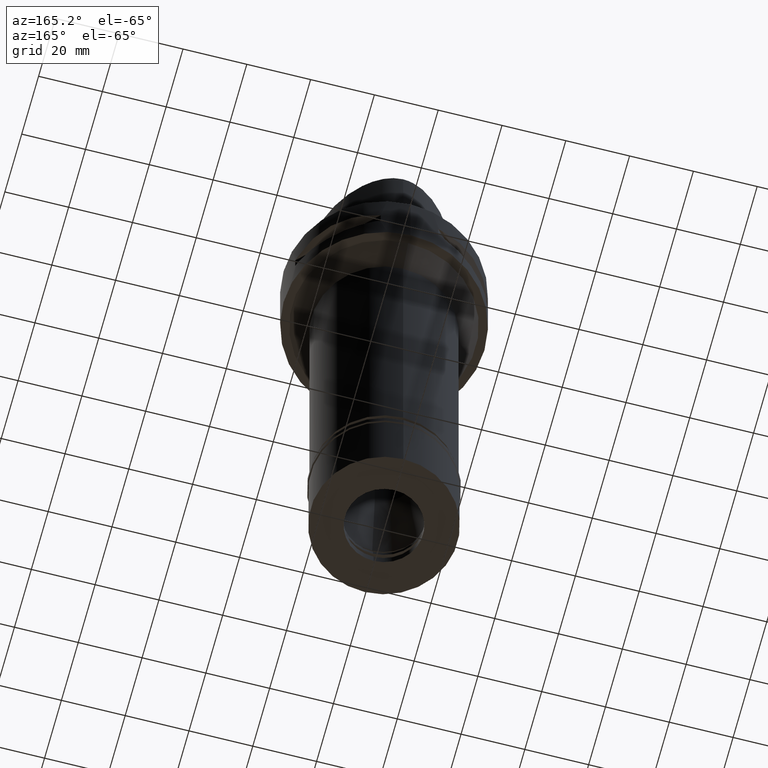
[diagram: clean part render]
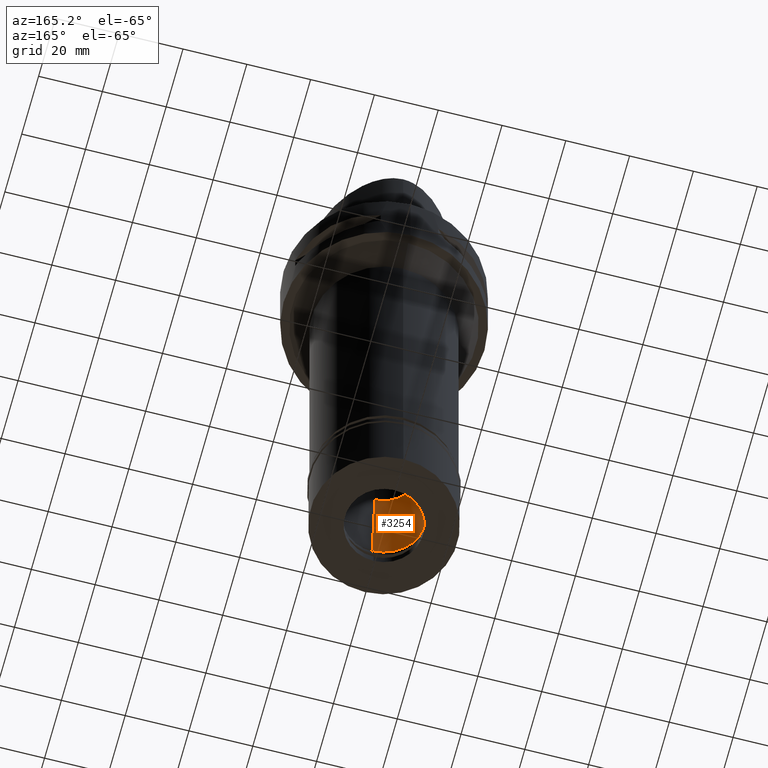
[diagram: same view with one face highlighted and labeled with its STEP entity id]
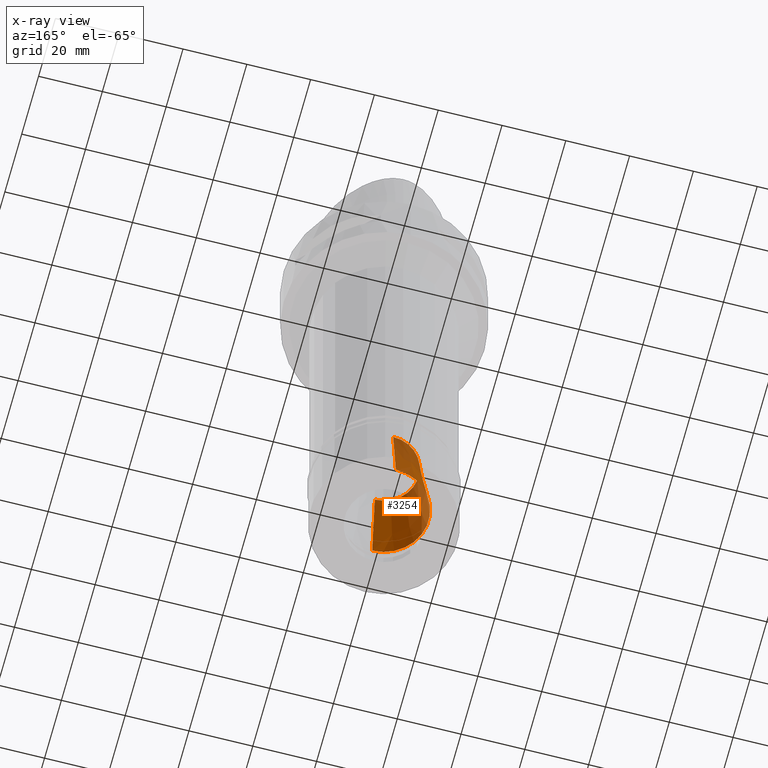
[diagram: x-ray of the same camera — body ghosted, the highlighted face saturated]
A machine part, auxiliary view. The second image highlights one B-rep face of the part: STEP entity #3254.
The next image is the same camera in x-ray: the body ghosted, the highlighted face saturated — about 18% of this face is hidden behind the body in this view.
In plain terms, the highlighted conical surface has half-angle 6 deg.
Its self-contained STEP definition (entity closure, byte-faithful):
#210 = CARTESIAN_POINT ( 'NONE',  ( 0.0000000000000000000, -14.00000000000000000, -154.0000000000000000 ) ) ;
#264 = EDGE_LOOP ( 'NONE', ( #2854, #2535, #1581, #2687 ) ) ;
#357 = DIRECTION ( 'NONE',  ( 0.0000000000000000000, -1.000000000000000000, 0.0000000000000000000 ) ) ;
#546 = VECTOR ( 'NONE', #2776, 1000.000000000000227 ) ;
#700 = AXIS2_PLACEMENT_3D ( 'NONE', #2709, #4934, #1502 ) ;
#701 = CARTESIAN_POINT ( 'NONE',  ( 0.0000000000000000000, -10.84687294203000008, -124.0000000000000000 ) ) ;
#704 = AXIS2_PLACEMENT_3D ( 'NONE', #731, #3790, #357 ) ;
#731 = CARTESIAN_POINT ( 'NONE',  ( 0.0000000000000000000, -1.702259050814999997E-14, -139.0000000000000000 ) ) ;
#913 = CARTESIAN_POINT ( 'NONE',  ( 0.0000000000000000000, 14.00000000000000000, -154.0000000000000000 ) ) ;
#1393 = FACE_OUTER_BOUND ( 'NONE', #264, .T. ) ;
#1502 = DIRECTION ( 'NONE',  ( 0.0000000000000000000, 1.000000000000000000, 0.0000000000000000000 ) ) ;
#1581 = ORIENTED_EDGE ( 'NONE', *, *, #2623, .T. ) ;
#1659 = CARTESIAN_POINT ( 'NONE',  ( 0.0000000000000000000, -1.702259050814999997E-14, -154.0000000000000000 ) ) ;
#1762 = VERTEX_POINT ( 'NONE', #701 ) ;
#1924 = VECTOR ( 'NONE', #4126, 1000.000000000000227 ) ;
#1982 = VERTEX_POINT ( 'NONE', #2846 ) ;
#2012 = CIRCLE ( 'NONE', #3926, 14.00000000000000000 ) ;
#2061 = DIRECTION ( 'NONE',  ( 0.0000000000000000000, 0.0000000000000000000, -1.000000000000000000 ) ) ;
#2504 = LINE ( 'NONE', #3137, #546 ) ;
#2535 = ORIENTED_EDGE ( 'NONE', *, *, #4225, .F. ) ;
#2623 = EDGE_CURVE ( 'NONE', #4340, #4246, #2012, .T. ) ;
#2687 = ORIENTED_EDGE ( 'NONE', *, *, #3824, .T. ) ;
#2709 = CARTESIAN_POINT ( 'NONE',  ( 0.0000000000000000000, -1.702259050814999997E-14, -124.0000000000000000 ) ) ;
#2776 = DIRECTION ( 'NONE',  ( 0.0000000000000000000, 0.1045284632676965891, 0.9945218953682687379 ) ) ;
#2846 = CARTESIAN_POINT ( 'NONE',  ( 0.0000000000000000000, 10.84687294203000008, -124.0000000000000000 ) ) ;
#2854 = ORIENTED_EDGE ( 'NONE', *, *, #4778, .T. ) ;
#3137 = CARTESIAN_POINT ( 'NONE',  ( 0.0000000000000000000, -14.00000000000000000, -154.0000000000000000 ) ) ;
#3254 = ADVANCED_FACE ( 'NONE', ( #1393 ), #4160, .F. ) ;
#3335 = CIRCLE ( 'NONE', #700, 10.84687294202000096 ) ;
#3699 = LINE ( 'NONE', #4875, #1924 ) ;
#3790 = DIRECTION ( 'NONE',  ( 0.0000000000000000000, 0.0000000000000000000, -1.000000000000000000 ) ) ;
#3824 = EDGE_CURVE ( 'NONE', #4246, #1982, #3699, .T. ) ;
#3926 = AXIS2_PLACEMENT_3D ( 'NONE', #1659, #2061, #4711 ) ;
#4126 = DIRECTION ( 'NONE',  ( 0.0000000000000000000, -0.1045284632676965891, 0.9945218953682687379 ) ) ;
#4160 = CONICAL_SURFACE ( 'NONE', #704, 12.42343647100999959, 0.1047197551196402399 ) ;
#4225 = EDGE_CURVE ( 'NONE', #4340, #1762, #2504, .T. ) ;
#4246 = VERTEX_POINT ( 'NONE', #913 ) ;
#4340 = VERTEX_POINT ( 'NONE', #210 ) ;
#4711 = DIRECTION ( 'NONE',  ( 0.0000000000000000000, -1.000000000000000000, 0.0000000000000000000 ) ) ;
#4778 = EDGE_CURVE ( 'NONE', #1982, #1762, #3335, .T. ) ;
#4875 = CARTESIAN_POINT ( 'NONE',  ( 0.0000000000000000000, 14.00000000000000000, -154.0000000000000000 ) ) ;
#4934 = DIRECTION ( 'NONE',  ( 0.0000000000000000000, 0.0000000000000000000, 1.000000000000000000 ) ) ;